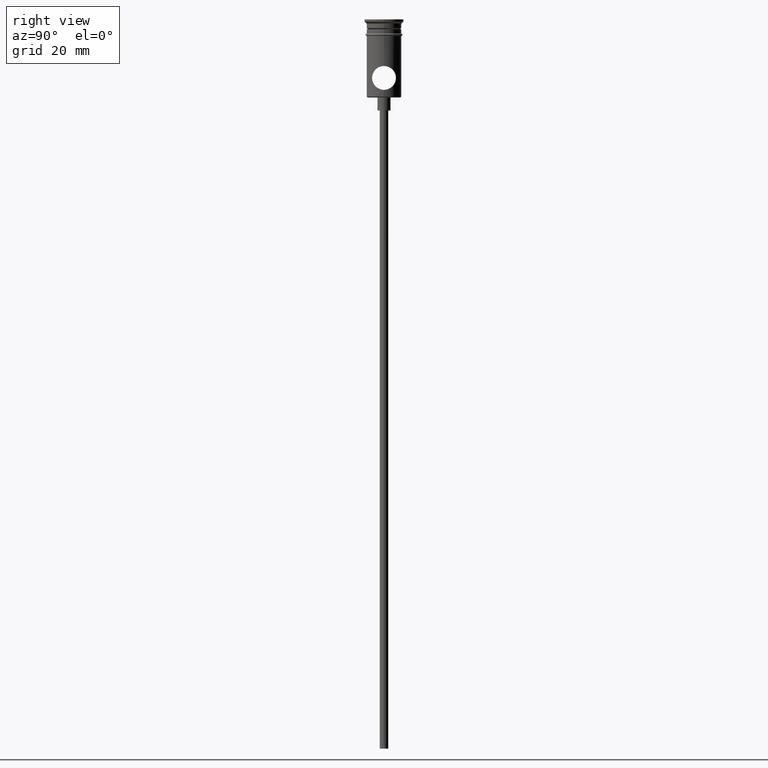
[diagram: clean part render]
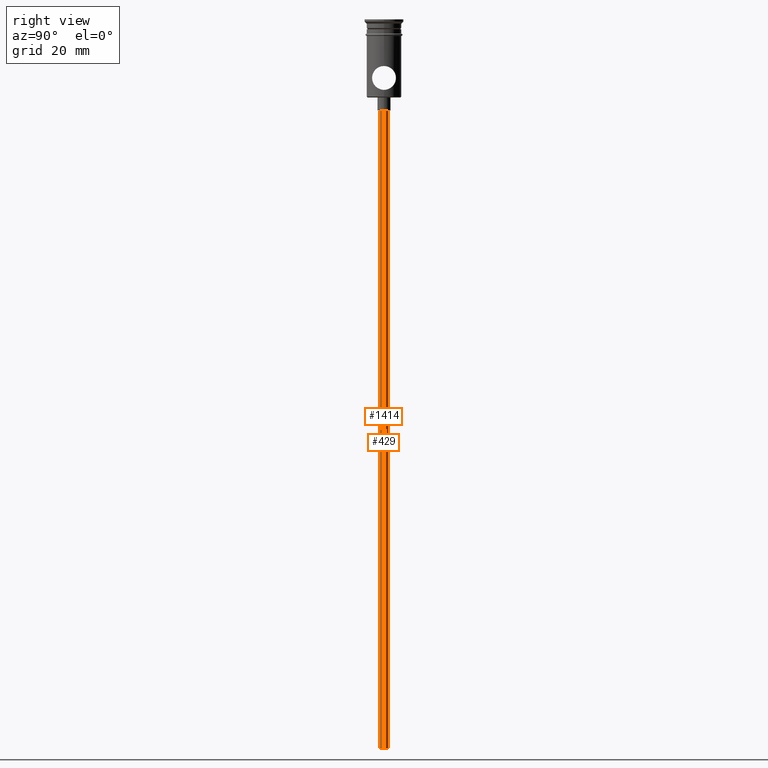
[diagram: same view with one multi-face feature highlighted, each face labeled with its STEP entity id]
A machine part, right view. The highlighted faces form ONE feature: a constant-radius fillet chain: 2 tangent blend faces with common blend radius 1 mm. The faces share edges in the B-rep.
Their STEP definitions:
[1] entity #1414 (Cylinder):
#25 = AXIS2_PLACEMENT_3D ( 'NONE', #48, #1229, #153 ) ;
#48 = CARTESIAN_POINT ( 'NONE',  ( 0.000000000000000000, 0.000000000000000000, -20.99999999999999645 ) ) ;
#138 = CIRCLE ( 'NONE', #25, 0.9999999999999997780 ) ;
#149 = LINE ( 'NONE', #1019, #1398 ) ;
#153 = DIRECTION ( 'NONE',  ( -1.000000000000000000, 0.000000000000000000, 0.000000000000000000 ) ) ;
#209 = DIRECTION ( 'NONE',  ( -1.000000000000000000, 0.000000000000000000, 0.000000000000000000 ) ) ;
#272 = VECTOR ( 'NONE', #1192, 1000.000000000000000 ) ;
#308 = AXIS2_PLACEMENT_3D ( 'NONE', #1176, #311, #1287 ) ;
#311 = DIRECTION ( 'NONE',  ( -0.000000000000000000, -0.000000000000000000, 1.000000000000000000 ) ) ;
#411 = EDGE_CURVE ( 'NONE', #457, #610, #718, .T. ) ;
#430 = FACE_OUTER_BOUND ( 'NONE', #552, .T. ) ;
#440 = VERTEX_POINT ( 'NONE', #653 ) ;
#457 = VERTEX_POINT ( 'NONE', #1189 ) ;
#552 = EDGE_LOOP ( 'NONE', ( #963, #676, #1400, #652 ) ) ;
#586 = AXIS2_PLACEMENT_3D ( 'NONE', #735, #869, #209 ) ;
#610 = VERTEX_POINT ( 'NONE', #784 ) ;
#652 = ORIENTED_EDGE ( 'NONE', *, *, #1046, .T. ) ;
#653 = CARTESIAN_POINT ( 'NONE',  ( -0.9999999999999997780, 1.224646799147352961E-16, -20.99999999999999645 ) ) ;
#657 = CARTESIAN_POINT ( 'NONE',  ( 0.9999999999999997780, 0.000000000000000000, -167.9999999999999716 ) ) ;
#676 = ORIENTED_EDGE ( 'NONE', *, *, #411, .F. ) ;
#718 = CIRCLE ( 'NONE', #586, 0.9999999999999997780 ) ;
#735 = CARTESIAN_POINT ( 'NONE',  ( 0.000000000000000000, 0.000000000000000000, -167.9999999999999716 ) ) ;
#752 = LINE ( 'NONE', #657, #272 ) ;
#784 = CARTESIAN_POINT ( 'NONE',  ( -0.9999999999999997780, 1.224646799147352961E-16, -167.9999999999999716 ) ) ;
#792 = EDGE_CURVE ( 'NONE', #457, #1377, #752, .T. ) ;
#867 = EDGE_CURVE ( 'NONE', #610, #440, #149, .T. ) ;
#869 = DIRECTION ( 'NONE',  ( 0.000000000000000000, 0.000000000000000000, -1.000000000000000000 ) ) ;
#908 = DIRECTION ( 'NONE',  ( -0.000000000000000000, -0.000000000000000000, 1.000000000000000000 ) ) ;
#947 = CYLINDRICAL_SURFACE ( 'NONE', #308, 0.9999999999999997780 ) ;
#961 = CARTESIAN_POINT ( 'NONE',  ( 0.9999999999999997780, 0.000000000000000000, -20.99999999999999645 ) ) ;
#963 = ORIENTED_EDGE ( 'NONE', *, *, #867, .F. ) ;
#1019 = CARTESIAN_POINT ( 'NONE',  ( -0.9999999999999997780, 1.224646799147352961E-16, -167.9999999999999716 ) ) ;
#1046 = EDGE_CURVE ( 'NONE', #1377, #440, #138, .T. ) ;
#1176 = CARTESIAN_POINT ( 'NONE',  ( 0.000000000000000000, 0.000000000000000000, -167.9999999999999716 ) ) ;
#1189 = CARTESIAN_POINT ( 'NONE',  ( 0.9999999999999997780, 0.000000000000000000, -167.9999999999999716 ) ) ;
#1192 = DIRECTION ( 'NONE',  ( -0.000000000000000000, -0.000000000000000000, 1.000000000000000000 ) ) ;
#1229 = DIRECTION ( 'NONE',  ( 0.000000000000000000, 0.000000000000000000, -1.000000000000000000 ) ) ;
#1287 = DIRECTION ( 'NONE',  ( 1.000000000000000000, 0.000000000000000000, 0.000000000000000000 ) ) ;
#1377 = VERTEX_POINT ( 'NONE', #961 ) ;
#1398 = VECTOR ( 'NONE', #908, 1000.000000000000000 ) ;
#1400 = ORIENTED_EDGE ( 'NONE', *, *, #792, .T. ) ;
#1414 = ADVANCED_FACE ( 'NONE', ( #430 ), #947, .T. ) ;
[2] entity #429 (Cylinder):
#9 = EDGE_CURVE ( 'NONE', #610, #457, #445, .T. ) ;
#102 = ORIENTED_EDGE ( 'NONE', *, *, #9, .F. ) ;
#126 = CIRCLE ( 'NONE', #326, 0.9999999999999997780 ) ;
#149 = LINE ( 'NONE', #1019, #1398 ) ;
#208 = ORIENTED_EDGE ( 'NONE', *, *, #867, .T. ) ;
#221 = CARTESIAN_POINT ( 'NONE',  ( 0.000000000000000000, 0.000000000000000000, -167.9999999999999716 ) ) ;
#272 = VECTOR ( 'NONE', #1192, 1000.000000000000000 ) ;
#281 = CARTESIAN_POINT ( 'NONE',  ( 0.000000000000000000, 0.000000000000000000, -20.99999999999999645 ) ) ;
#315 = DIRECTION ( 'NONE',  ( 1.000000000000000000, 0.000000000000000000, 0.000000000000000000 ) ) ;
#326 = AXIS2_PLACEMENT_3D ( 'NONE', #281, #616, #1050 ) ;
#383 = EDGE_CURVE ( 'NONE', #440, #1377, #126, .T. ) ;
#429 = ADVANCED_FACE ( 'NONE', ( #754 ), #989, .T. ) ;
#440 = VERTEX_POINT ( 'NONE', #653 ) ;
#445 = CIRCLE ( 'NONE', #1087, 0.9999999999999997780 ) ;
#457 = VERTEX_POINT ( 'NONE', #1189 ) ;
#561 = ORIENTED_EDGE ( 'NONE', *, *, #792, .F. ) ;
#610 = VERTEX_POINT ( 'NONE', #784 ) ;
#616 = DIRECTION ( 'NONE',  ( 0.000000000000000000, 0.000000000000000000, -1.000000000000000000 ) ) ;
#653 = CARTESIAN_POINT ( 'NONE',  ( -0.9999999999999997780, 1.224646799147352961E-16, -20.99999999999999645 ) ) ;
#657 = CARTESIAN_POINT ( 'NONE',  ( 0.9999999999999997780, 0.000000000000000000, -167.9999999999999716 ) ) ;
#752 = LINE ( 'NONE', #657, #272 ) ;
#754 = FACE_OUTER_BOUND ( 'NONE', #1142, .T. ) ;
#784 = CARTESIAN_POINT ( 'NONE',  ( -0.9999999999999997780, 1.224646799147352961E-16, -167.9999999999999716 ) ) ;
#792 = EDGE_CURVE ( 'NONE', #457, #1377, #752, .T. ) ;
#837 = DIRECTION ( 'NONE',  ( -1.000000000000000000, 0.000000000000000000, 0.000000000000000000 ) ) ;
#867 = EDGE_CURVE ( 'NONE', #610, #440, #149, .T. ) ;
#908 = DIRECTION ( 'NONE',  ( -0.000000000000000000, -0.000000000000000000, 1.000000000000000000 ) ) ;
#940 = DIRECTION ( 'NONE',  ( 0.000000000000000000, 0.000000000000000000, -1.000000000000000000 ) ) ;
#961 = CARTESIAN_POINT ( 'NONE',  ( 0.9999999999999997780, 0.000000000000000000, -20.99999999999999645 ) ) ;
#989 = CYLINDRICAL_SURFACE ( 'NONE', #1063, 0.9999999999999997780 ) ;
#1019 = CARTESIAN_POINT ( 'NONE',  ( -0.9999999999999997780, 1.224646799147352961E-16, -167.9999999999999716 ) ) ;
#1028 = ORIENTED_EDGE ( 'NONE', *, *, #383, .T. ) ;
#1050 = DIRECTION ( 'NONE',  ( -1.000000000000000000, 0.000000000000000000, 0.000000000000000000 ) ) ;
#1063 = AXIS2_PLACEMENT_3D ( 'NONE', #221, #1418, #315 ) ;
#1087 = AXIS2_PLACEMENT_3D ( 'NONE', #1275, #940, #837 ) ;
#1142 = EDGE_LOOP ( 'NONE', ( #102, #208, #1028, #561 ) ) ;
#1189 = CARTESIAN_POINT ( 'NONE',  ( 0.9999999999999997780, 0.000000000000000000, -167.9999999999999716 ) ) ;
#1192 = DIRECTION ( 'NONE',  ( -0.000000000000000000, -0.000000000000000000, 1.000000000000000000 ) ) ;
#1275 = CARTESIAN_POINT ( 'NONE',  ( 0.000000000000000000, 0.000000000000000000, -167.9999999999999716 ) ) ;
#1377 = VERTEX_POINT ( 'NONE', #961 ) ;
#1398 = VECTOR ( 'NONE', #908, 1000.000000000000000 ) ;
#1418 = DIRECTION ( 'NONE',  ( -0.000000000000000000, -0.000000000000000000, 1.000000000000000000 ) ) ;